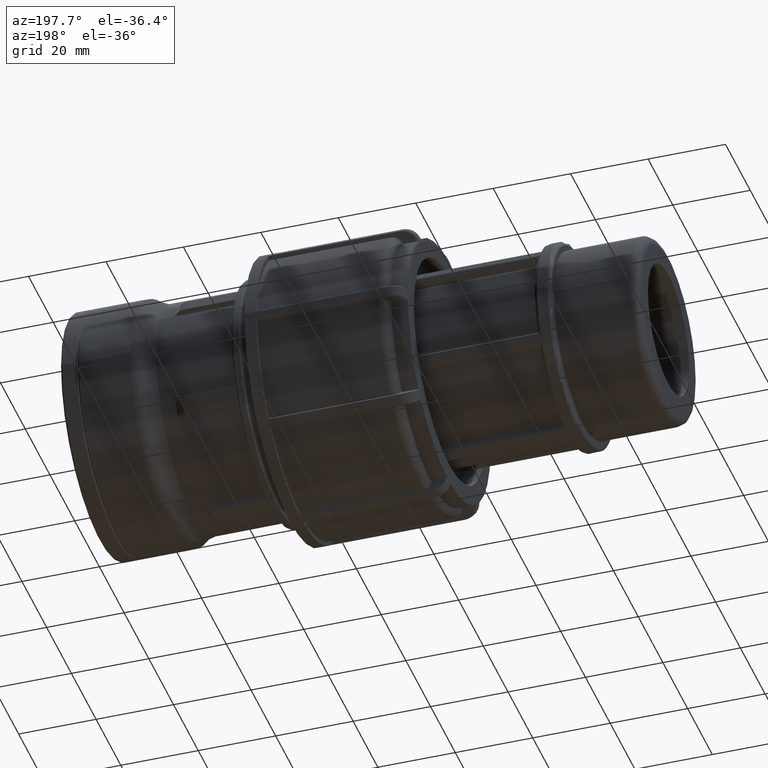
[diagram: clean part render]
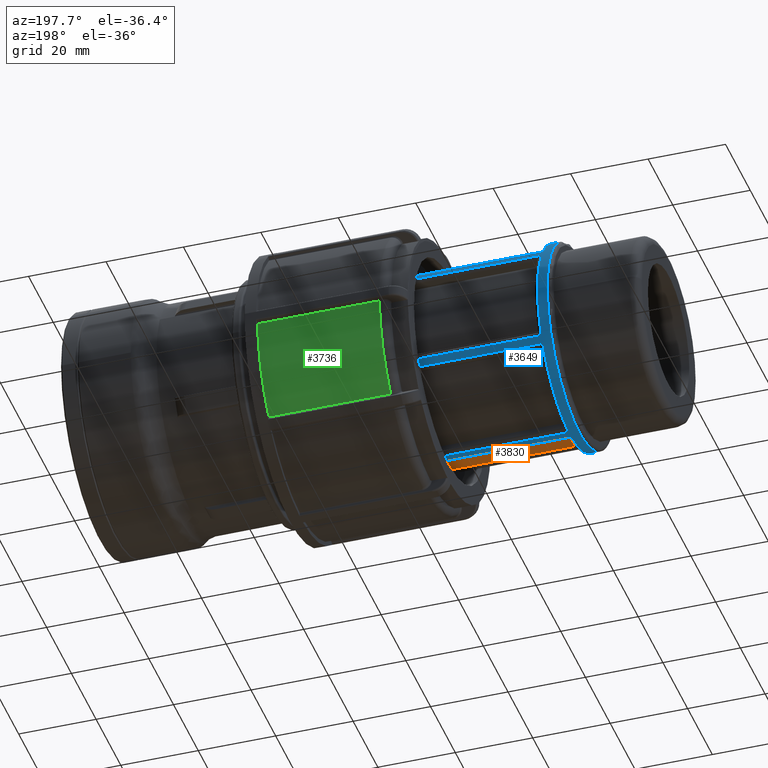
[diagram: same view with three faces highlighted in distinct colors, each labeled with its STEP entity id]
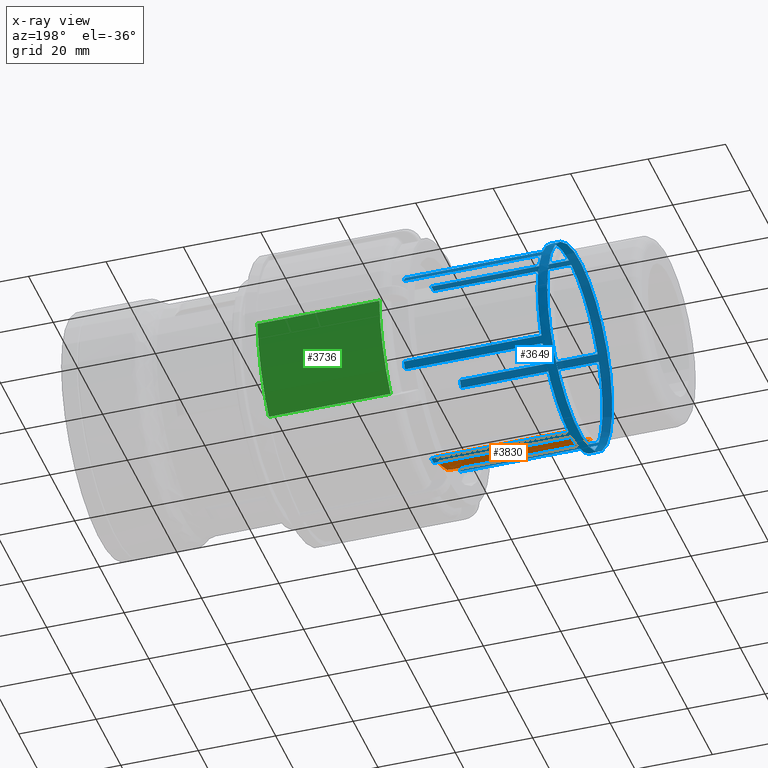
[diagram: x-ray of the same camera — body ghosted, the three highlighted faces saturated]
A machine part, auxiliary view with three faces highlighted in distinct colors.
The next image is the same camera in x-ray (body ghosted, the three faces saturated) — at least one of them is partly hidden behind the body in this view.
Their STEP definitions:

[orange] entity #3830 — the highlighted cylindrical surface (partial cylindrical patch) has radius 23.9015 mm, axis along (1, 0, 0).
#174=LINE('',#5493,#389);
#355=LINE('',#8277,#570);
#389=VECTOR('',#4361,34.595);
#570=VECTOR('',#5134,34.595);
#659=CYLINDRICAL_SURFACE('',#4212,23.9015);
#858=FACE_OUTER_BOUND('',#1096,.T.);
#1096=EDGE_LOOP('',(#3500,#3501,#3502,#3503));
#1483=CIRCLE('',#4204,23.9015);
#1488=CIRCLE('',#4213,23.9015);
#1552=VERTEX_POINT('',#5490);
#1553=VERTEX_POINT('',#5492);
#1877=VERTEX_POINT('',#8274);
#1878=VERTEX_POINT('',#8276);
#1951=EDGE_CURVE('',#1553,#1552,#174,.T.);
#2434=EDGE_CURVE('',#1878,#1877,#355,.T.);
#2444=EDGE_CURVE('',#1878,#1552,#1483,.T.);
#2450=EDGE_CURVE('',#1877,#1553,#1488,.T.);
#3500=ORIENTED_EDGE('',*,*,#1951,.T.);
#3501=ORIENTED_EDGE('',*,*,#2444,.F.);
#3502=ORIENTED_EDGE('',*,*,#2434,.T.);
#3503=ORIENTED_EDGE('',*,*,#2450,.T.);
#3830=ADVANCED_FACE('',(#858),#659,.T.);
#4204=AXIS2_PLACEMENT_3D('',#8293,#5152,#5153);
#4212=AXIS2_PLACEMENT_3D('',#8303,#5169,#5170);
#4213=AXIS2_PLACEMENT_3D('',#8304,#5171,#5172);
#4361=DIRECTION('',(1.,0.,0.));
#5134=DIRECTION('',(-1.,0.,0.));
#5152=DIRECTION('center_axis',(1.,0.,0.));
#5153=DIRECTION('ref_axis',(0.,0.,-1.));
#5169=DIRECTION('center_axis',(1.,0.,0.));
#5170=DIRECTION('ref_axis',(0.,1.,0.));
#5171=DIRECTION('center_axis',(1.,0.,0.));
#5172=DIRECTION('ref_axis',(0.,0.,-1.));
#5490=CARTESIAN_POINT('',(-86.005,-1.91212,-23.8248924311444));
#5492=CARTESIAN_POINT('',(-120.6,-1.91212,-23.8248924311444));
#5493=CARTESIAN_POINT('',(-103.3025,-1.91212,-23.8248924311444));
#8274=CARTESIAN_POINT('',(-120.6,-19.6769020878026,-13.5683907106565));
#8276=CARTESIAN_POINT('',(-86.005,-19.6769020878026,-13.5683907106565));
#8277=CARTESIAN_POINT('',(-103.3025,-19.6769020878026,-13.5683907106565));
#8293=CARTESIAN_POINT('Origin',(-86.005,0.,0.));
#8303=CARTESIAN_POINT('Origin',(-103.3025,0.,0.));
#8304=CARTESIAN_POINT('Origin',(-120.6,0.,0.));

[blue] entity #3649 — the highlighted cylindrical surface (bore or boss wall) has radius 26.2917 mm, axis along (1, 0, 0).
#50=FACE_BOUND('',#898,.T.);
#149=LINE('',#5323,#364);
#152=LINE('',#5332,#367);
#156=LINE('',#5345,#371);
#157=LINE('',#5349,#372);
#158=LINE('',#5353,#373);
#159=LINE('',#5357,#374);
#160=LINE('',#5361,#375);
#161=LINE('',#5365,#376);
#162=LINE('',#5369,#377);
#163=LINE('',#5373,#378);
#164=LINE('',#5377,#379);
#165=LINE('',#5381,#380);
#364=VECTOR('',#4274,35.55106);
#367=VECTOR('',#4283,35.55106);
#371=VECTOR('',#4295,35.55106);
#372=VECTOR('',#4298,35.55106);
#373=VECTOR('',#4301,35.55106);
#374=VECTOR('',#4304,35.55106);
#375=VECTOR('',#4307,35.55106);
#376=VECTOR('',#4310,35.55106);
#377=VECTOR('',#4313,35.55106);
#378=VECTOR('',#4316,35.55106);
#379=VECTOR('',#4319,35.55106);
#380=VECTOR('',#4322,35.55106);
#581=CYLINDRICAL_SURFACE('',#3875,26.29165);
#677=FACE_OUTER_BOUND('',#897,.T.);
#897=EDGE_LOOP('',(#2488));
#898=EDGE_LOOP('',(#2489,#2490,#2491,#2492,#2493,#2494,#2495,#2496,#2497,
#2498,#2499,#2500,#2501,#2502,#2503,#2504,#2505,#2506,#2507,#2508,#2509,
#2510,#2511,#2512));
#1295=CIRCLE('',#3868,26.29165);
#1299=CIRCLE('',#3876,26.29165);
#1300=CIRCLE('',#3877,26.29165);
#1301=CIRCLE('',#3878,26.29165);
#1302=CIRCLE('',#3879,26.29165);
#1303=CIRCLE('',#3880,26.29165);
#1304=CIRCLE('',#3881,26.29165);
#1305=CIRCLE('',#3882,26.29165);
#1306=CIRCLE('',#3883,26.29165);
#1307=CIRCLE('',#3884,26.29165);
#1308=CIRCLE('',#3885,26.29165);
#1309=CIRCLE('',#3886,26.29165);
#1310=CIRCLE('',#3887,26.29165);
#1505=VERTEX_POINT('',#5277);
#1506=VERTEX_POINT('',#5278);
#1511=VERTEX_POINT('',#5322);
#1514=VERTEX_POINT('',#5330);
#1517=VERTEX_POINT('',#5340);
#1518=VERTEX_POINT('',#5342);
#1519=VERTEX_POINT('',#5344);
#1520=VERTEX_POINT('',#5346);
#1521=VERTEX_POINT('',#5348);
#1522=VERTEX_POINT('',#5350);
#1523=VERTEX_POINT('',#5352);
#1524=VERTEX_POINT('',#5354);
#1525=VERTEX_POINT('',#5356);
#1526=VERTEX_POINT('',#5358);
#1527=VERTEX_POINT('',#5360);
#1528=VERTEX_POINT('',#5362);
#1529=VERTEX_POINT('',#5364);
#1530=VERTEX_POINT('',#5366);
#1531=VERTEX_POINT('',#5368);
#1532=VERTEX_POINT('',#5370);
#1533=VERTEX_POINT('',#5372);
#1534=VERTEX_POINT('',#5374);
#1535=VERTEX_POINT('',#5376);
#1536=VERTEX_POINT('',#5378);
#1537=VERTEX_POINT('',#5380);
#1892=EDGE_CURVE('',#1505,#1506,#1295,.T.);
#1898=EDGE_CURVE('',#1506,#1511,#149,.T.);
#1903=EDGE_CURVE('',#1514,#1505,#152,.T.);
#1907=EDGE_CURVE('',#1517,#1517,#1299,.T.);
#1908=EDGE_CURVE('',#1518,#1514,#1300,.T.);
#1909=EDGE_CURVE('',#1519,#1518,#156,.T.);
#1910=EDGE_CURVE('',#1520,#1519,#1301,.T.);
#1911=EDGE_CURVE('',#1521,#1520,#157,.T.);
#1912=EDGE_CURVE('',#1522,#1521,#1302,.T.);
#1913=EDGE_CURVE('',#1523,#1522,#158,.T.);
#1914=EDGE_CURVE('',#1524,#1523,#1303,.T.);
#1915=EDGE_CURVE('',#1525,#1524,#159,.T.);
#1916=EDGE_CURVE('',#1526,#1525,#1304,.T.);
#1917=EDGE_CURVE('',#1527,#1526,#160,.T.);
#1918=EDGE_CURVE('',#1528,#1527,#1305,.T.);
#1919=EDGE_CURVE('',#1529,#1528,#161,.T.);
#1920=EDGE_CURVE('',#1530,#1529,#1306,.T.);
#1921=EDGE_CURVE('',#1531,#1530,#162,.T.);
#1922=EDGE_CURVE('',#1532,#1531,#1307,.T.);
#1923=EDGE_CURVE('',#1533,#1532,#163,.T.);
#1924=EDGE_CURVE('',#1534,#1533,#1308,.T.);
#1925=EDGE_CURVE('',#1535,#1534,#164,.T.);
#1926=EDGE_CURVE('',#1536,#1535,#1309,.T.);
#1927=EDGE_CURVE('',#1537,#1536,#165,.T.);
#1928=EDGE_CURVE('',#1511,#1537,#1310,.T.);
#2488=ORIENTED_EDGE('',*,*,#1907,.F.);
#2489=ORIENTED_EDGE('',*,*,#1898,.F.);
#2490=ORIENTED_EDGE('',*,*,#1892,.F.);
#2491=ORIENTED_EDGE('',*,*,#1903,.F.);
#2492=ORIENTED_EDGE('',*,*,#1908,.F.);
#2493=ORIENTED_EDGE('',*,*,#1909,.F.);
#2494=ORIENTED_EDGE('',*,*,#1910,.F.);
#2495=ORIENTED_EDGE('',*,*,#1911,.F.);
#2496=ORIENTED_EDGE('',*,*,#1912,.F.);
#2497=ORIENTED_EDGE('',*,*,#1913,.F.);
#2498=ORIENTED_EDGE('',*,*,#1914,.F.);
#2499=ORIENTED_EDGE('',*,*,#1915,.F.);
#2500=ORIENTED_EDGE('',*,*,#1916,.F.);
#2501=ORIENTED_EDGE('',*,*,#1917,.F.);
#2502=ORIENTED_EDGE('',*,*,#1918,.F.);
#2503=ORIENTED_EDGE('',*,*,#1919,.F.);
#2504=ORIENTED_EDGE('',*,*,#1920,.F.);
#2505=ORIENTED_EDGE('',*,*,#1921,.F.);
#2506=ORIENTED_EDGE('',*,*,#1922,.F.);
#2507=ORIENTED_EDGE('',*,*,#1923,.F.);
#2508=ORIENTED_EDGE('',*,*,#1924,.F.);
#2509=ORIENTED_EDGE('',*,*,#1925,.F.);
#2510=ORIENTED_EDGE('',*,*,#1926,.F.);
#2511=ORIENTED_EDGE('',*,*,#1927,.F.);
#2512=ORIENTED_EDGE('',*,*,#1928,.F.);
#3649=ADVANCED_FACE('',(#677,#50),#581,.T.);
#3868=AXIS2_PLACEMENT_3D('',#5279,#4268,#4269);
#3875=AXIS2_PLACEMENT_3D('',#5339,#4289,#4290);
#3876=AXIS2_PLACEMENT_3D('',#5341,#4291,#4292);
#3877=AXIS2_PLACEMENT_3D('',#5343,#4293,#4294);
#3878=AXIS2_PLACEMENT_3D('',#5347,#4296,#4297);
#3879=AXIS2_PLACEMENT_3D('',#5351,#4299,#4300);
#3880=AXIS2_PLACEMENT_3D('',#5355,#4302,#4303);
#3881=AXIS2_PLACEMENT_3D('',#5359,#4305,#4306);
#3882=AXIS2_PLACEMENT_3D('',#5363,#4308,#4309);
#3883=AXIS2_PLACEMENT_3D('',#5367,#4311,#4312);
#3884=AXIS2_PLACEMENT_3D('',#5371,#4314,#4315);
#3885=AXIS2_PLACEMENT_3D('',#5375,#4317,#4318);
#3886=AXIS2_PLACEMENT_3D('',#5379,#4320,#4321);
#3887=AXIS2_PLACEMENT_3D('',#5382,#4323,#4324);
#4268=DIRECTION('center_axis',(1.,0.,0.));
#4269=DIRECTION('ref_axis',(0.,-0.499999999999999,0.866025403784439));
#4274=DIRECTION('',(1.,0.,0.));
#4283=DIRECTION('',(-1.,0.,0.));
#4289=DIRECTION('center_axis',(1.,0.,0.));
#4290=DIRECTION('ref_axis',(0.,1.,0.));
#4291=DIRECTION('center_axis',(-1.,0.,0.));
#4292=DIRECTION('ref_axis',(0.,-1.,1.83697019872103E-16));
#4293=DIRECTION('center_axis',(1.,0.,0.));
#4294=DIRECTION('ref_axis',(0.,0.,-1.));
#4295=DIRECTION('',(1.,0.,0.));
#4296=DIRECTION('center_axis',(1.,0.,0.));
#4297=DIRECTION('ref_axis',(0.,0.5,0.866025403784439));
#4298=DIRECTION('',(-1.,0.,0.));
#4299=DIRECTION('center_axis',(1.,0.,0.));
#4300=DIRECTION('ref_axis',(0.,-0.866025403784439,-0.499999999999999));
#4301=DIRECTION('',(1.,0.,0.));
#4302=DIRECTION('center_axis',(1.,0.,0.));
#4303=DIRECTION('ref_axis',(0.,1.,-3.06161699786838E-16));
#4304=DIRECTION('',(-1.,0.,0.));
#4305=DIRECTION('center_axis',(1.,0.,0.));
#4306=DIRECTION('ref_axis',(0.,-0.866025403784438,0.5));
#4307=DIRECTION('',(1.,0.,0.));
#4308=DIRECTION('center_axis',(1.,0.,0.));
#4309=DIRECTION('ref_axis',(0.,0.499999999999999,-0.866025403784439));
#4310=DIRECTION('',(-1.,0.,0.));
#4311=DIRECTION('center_axis',(1.,0.,0.));
#4312=DIRECTION('ref_axis',(0.,1.68908839821792E-16,1.));
#4313=DIRECTION('',(1.,0.,0.));
#4314=DIRECTION('center_axis',(1.,0.,0.));
#4315=DIRECTION('ref_axis',(0.,-0.5,-0.866025403784438));
#4316=DIRECTION('',(-1.,0.,0.));
#4317=DIRECTION('center_axis',(1.,0.,0.));
#4318=DIRECTION('ref_axis',(0.,0.866025403784439,0.5));
#4319=DIRECTION('',(1.,0.,0.));
#4320=DIRECTION('center_axis',(1.,0.,0.));
#4321=DIRECTION('ref_axis',(0.,-1.,1.83697019872103E-16));
#4322=DIRECTION('',(-1.,0.,0.));
#4323=DIRECTION('center_axis',(1.,0.,0.));
#4324=DIRECTION('ref_axis',(0.,0.866025403784439,-0.5));
#5277=CARTESIAN_POINT('',(-121.55606,-0.992137735849059,26.2729237511854));
#5278=CARTESIAN_POINT('',(-121.55606,-22.2569505322936,13.9956783588912));
#5279=CARTESIAN_POINT('Origin',(-121.55606,0.,0.));
#5322=CARTESIAN_POINT('',(-86.005,-22.2569505322936,13.9956783588912));
#5323=CARTESIAN_POINT('',(-122.8,-22.2569505322936,13.9956783588912));
#5330=CARTESIAN_POINT('',(-86.005,-0.992137735849056,26.2729237511854));
#5332=CARTESIAN_POINT('',(-122.8,-0.992137735849055,26.2729237511854));
#5339=CARTESIAN_POINT('Origin',(-122.8,0.,0.));
#5340=CARTESIAN_POINT('',(-124.04394,26.29165,-8.04949625420063E-15));
#5341=CARTESIAN_POINT('Origin',(-124.04394,0.,0.));
#5342=CARTESIAN_POINT('',(-86.005,0.992137735849053,26.2729237511854));
#5343=CARTESIAN_POINT('Origin',(-86.005,0.,0.));
#5344=CARTESIAN_POINT('',(-121.55606,0.992137735849053,26.2729237511854));
#5345=CARTESIAN_POINT('',(-122.8,0.992137735849053,26.2729237511854));
#5346=CARTESIAN_POINT('',(-121.55606,22.2569505322936,13.9956783588912));
#5347=CARTESIAN_POINT('Origin',(-121.55606,0.,0.));
#5348=CARTESIAN_POINT('',(-86.005,22.2569505322936,13.9956783588912));
#5349=CARTESIAN_POINT('',(-122.8,22.2569505322936,13.9956783588912));
#5350=CARTESIAN_POINT('',(-86.005,23.2490882681427,12.2772453922943));
#5351=CARTESIAN_POINT('Origin',(-86.005,0.,0.));
#5352=CARTESIAN_POINT('',(-121.55606,23.2490882681427,12.2772453922942));
#5353=CARTESIAN_POINT('',(-122.8,23.2490882681427,12.2772453922942));
#5354=CARTESIAN_POINT('',(-121.55606,23.2490882681427,-12.2772453922943));
#5355=CARTESIAN_POINT('Origin',(-121.55606,0.,0.));
#5356=CARTESIAN_POINT('',(-86.005,23.2490882681427,-12.2772453922943));
#5357=CARTESIAN_POINT('',(-122.8,23.2490882681427,-12.2772453922943));
#5358=CARTESIAN_POINT('',(-86.005,22.2569505322936,-13.9956783588912));
#5359=CARTESIAN_POINT('Origin',(-86.005,0.,0.));
#5360=CARTESIAN_POINT('',(-121.55606,22.2569505322936,-13.9956783588912));
#5361=CARTESIAN_POINT('',(-122.8,22.2569505322936,-13.9956783588912));
#5362=CARTESIAN_POINT('',(-121.55606,0.992137735849055,-26.2729237511854));
#5363=CARTESIAN_POINT('Origin',(-121.55606,0.,0.));
#5364=CARTESIAN_POINT('',(-86.005,0.992137735849053,-26.2729237511854));
#5365=CARTESIAN_POINT('',(-122.8,0.992137735849053,-26.2729237511854));
#5366=CARTESIAN_POINT('',(-86.005,-0.992137735849061,-26.2729237511854));
#5367=CARTESIAN_POINT('Origin',(-86.005,0.,0.));
#5368=CARTESIAN_POINT('',(-121.55606,-0.992137735849061,-26.2729237511854));
#5369=CARTESIAN_POINT('',(-122.8,-0.992137735849061,-26.2729237511854));
#5370=CARTESIAN_POINT('',(-121.55606,-22.2569505322936,-13.9956783588912));
#5371=CARTESIAN_POINT('Origin',(-121.55606,0.,0.));
#5372=CARTESIAN_POINT('',(-86.005,-22.2569505322936,-13.9956783588912));
#5373=CARTESIAN_POINT('',(-122.8,-22.2569505322936,-13.9956783588912));
#5374=CARTESIAN_POINT('',(-86.005,-23.2490882681427,-12.2772453922943));
#5375=CARTESIAN_POINT('Origin',(-86.005,0.,0.));
#5376=CARTESIAN_POINT('',(-121.55606,-23.2490882681427,-12.2772453922943));
#5377=CARTESIAN_POINT('',(-122.8,-23.2490882681427,-12.2772453922943));
#5378=CARTESIAN_POINT('',(-121.55606,-23.2490882681427,12.2772453922943));
#5379=CARTESIAN_POINT('Origin',(-121.55606,0.,0.));
#5380=CARTESIAN_POINT('',(-86.005,-23.2490882681427,12.2772453922943));
#5381=CARTESIAN_POINT('',(-122.8,-23.2490882681427,12.2772453922943));
#5382=CARTESIAN_POINT('Origin',(-86.005,0.,0.));

[green] entity #3736 — the highlighted cylindrical surface (partial cylindrical patch) has radius 35.599 mm, axis along (1, 0, 0).
#279=LINE('',#6555,#494);
#281=LINE('',#6614,#496);
#494=VECTOR('',#4792,31.4433045083562);
#496=VECTOR('',#4806,31.4433045083562);
#618=CYLINDRICAL_SURFACE('',#4069,35.599);
#764=FACE_OUTER_BOUND('',#1001,.T.);
#1001=EDGE_LOOP('',(#3009,#3010,#3011,#3012));
#1408=CIRCLE('',#4066,35.599);
#1411=CIRCLE('',#4070,35.599);
#1747=VERTEX_POINT('',#6551);
#1748=VERTEX_POINT('',#6553);
#1750=VERTEX_POINT('',#6604);
#1753=VERTEX_POINT('',#6612);
#2215=EDGE_CURVE('',#1748,#1747,#279,.T.);
#2218=EDGE_CURVE('',#1747,#1750,#1408,.T.);
#2222=EDGE_CURVE('',#1753,#1748,#1411,.T.);
#2223=EDGE_CURVE('',#1750,#1753,#281,.T.);
#3009=ORIENTED_EDGE('',*,*,#2215,.F.);
#3010=ORIENTED_EDGE('',*,*,#2222,.F.);
#3011=ORIENTED_EDGE('',*,*,#2223,.F.);
#3012=ORIENTED_EDGE('',*,*,#2218,.F.);
#3736=ADVANCED_FACE('',(#764),#618,.T.);
#4066=AXIS2_PLACEMENT_3D('',#6605,#4795,#4796);
#4069=AXIS2_PLACEMENT_3D('',#6611,#4802,#4803);
#4070=AXIS2_PLACEMENT_3D('',#6613,#4804,#4805);
#4792=DIRECTION('',(1.,0.,0.));
#4795=DIRECTION('center_axis',(1.,0.,0.));
#4796=DIRECTION('ref_axis',(0.,0.,-1.));
#4802=DIRECTION('center_axis',(1.,0.,0.));
#4803=DIRECTION('ref_axis',(0.,1.,0.));
#4804=DIRECTION('center_axis',(-1.,0.,0.));
#4805=DIRECTION('ref_axis',(0.,1.,-1.83871538537445E-16));
#4806=DIRECTION('',(-1.,0.,0.));
#6551=CARTESIAN_POINT('',(-52.185,26.4238109106672,-23.8552094511305));
#6553=CARTESIAN_POINT('',(-83.6283045083562,26.4238109106672,-23.8552094511305));
#6555=CARTESIAN_POINT('',(-69.095,26.4238109106672,-23.8552094511305));
#6604=CARTESIAN_POINT('',(-52.185,35.5526362492436,-1.8162755102041));
#6605=CARTESIAN_POINT('Origin',(-52.185,0.,0.));
#6611=CARTESIAN_POINT('Origin',(-69.095,0.,0.));
#6612=CARTESIAN_POINT('',(-83.6283045083562,35.5526362492436,-1.8162755102041));
#6613=CARTESIAN_POINT('Origin',(-83.6283045083562,0.,0.));
#6614=CARTESIAN_POINT('',(-69.095,35.5526362492436,-1.8162755102041));